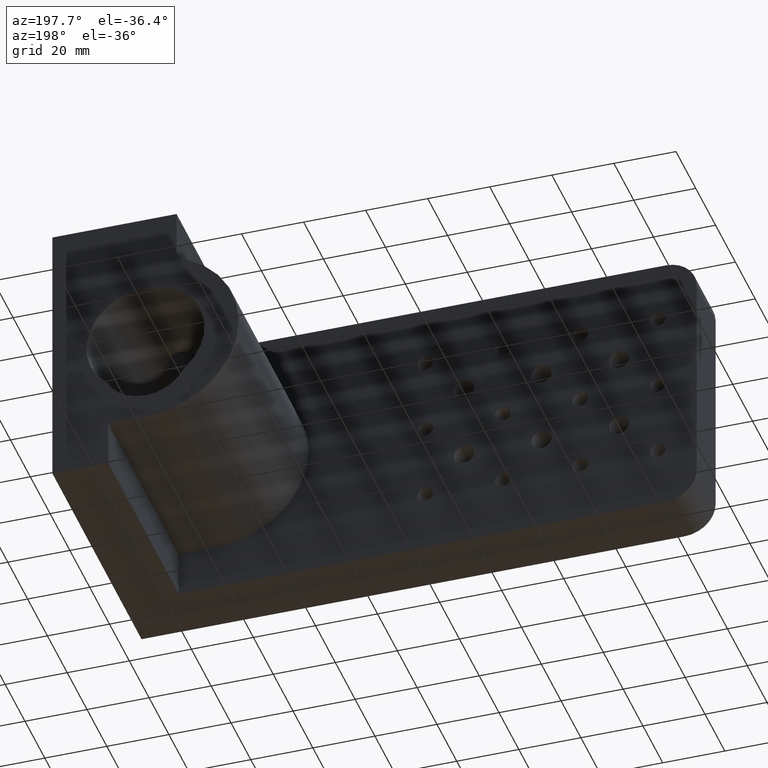
[diagram: clean part render]
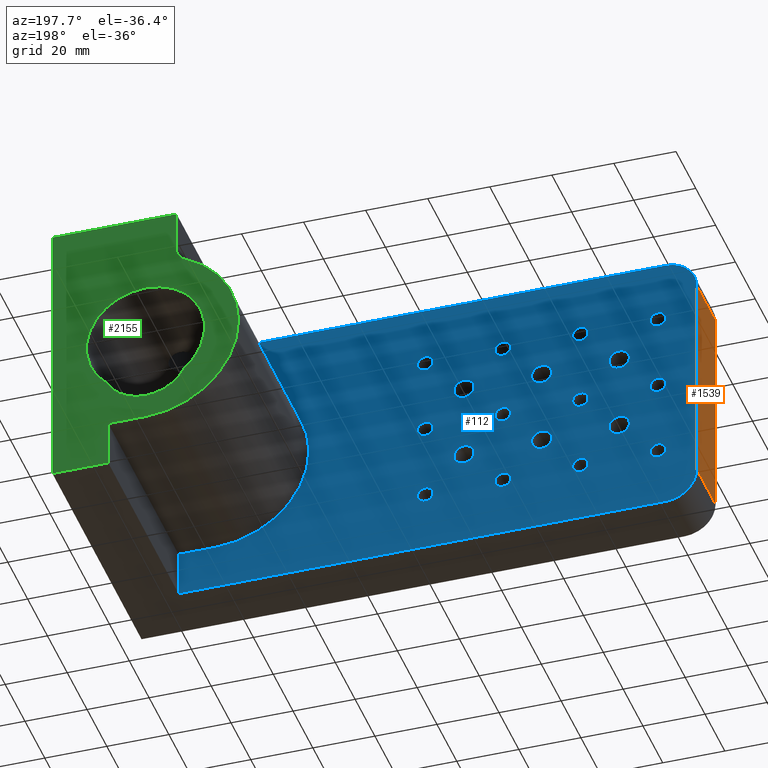
[diagram: same view with three faces highlighted in distinct colors, each labeled with its STEP entity id]
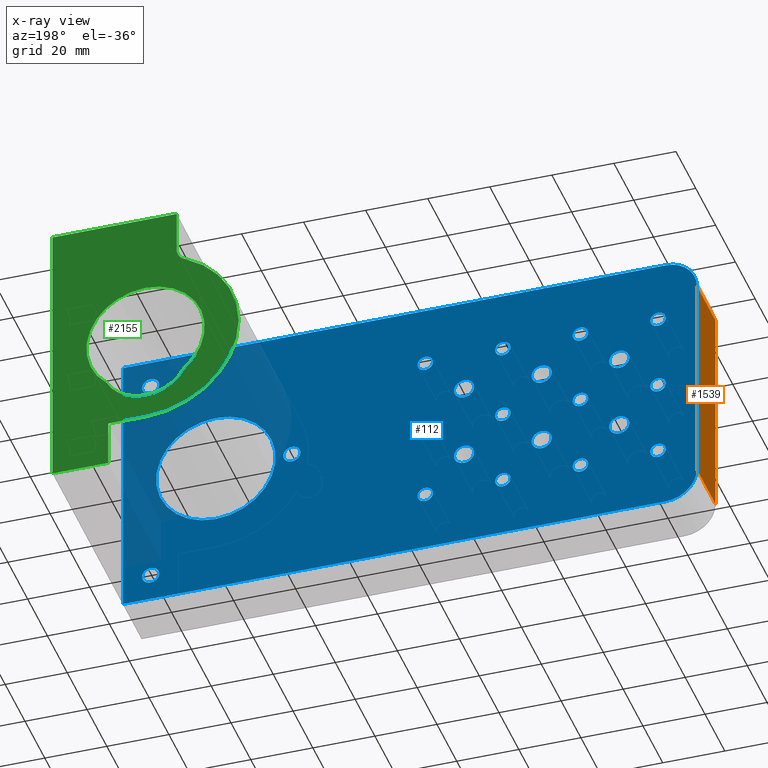
[diagram: x-ray of the same camera — body ghosted, the three highlighted faces saturated]
A machine part, auxiliary view with three faces highlighted in distinct colors.
The next image is the same camera in x-ray (body ghosted, the three faces saturated) — at least one of them is partly hidden behind the body in this view.
Their STEP definitions:

[orange] entity #1539 — the highlighted planar face has unit normal (1, 0, 0).
#70 = CARTESIAN_POINT ( 'NONE',  ( -10.60306127555724100, 104.2146020396520600, 178.8158939252801900 ) ) ;
#183 = DIRECTION ( 'NONE',  ( 0.0000000000000000000, 0.0000000000000000000, 1.000000000000000000 ) ) ;
#231 = VECTOR ( 'NONE', #4204, 1000.000000000000000 ) ;
#435 = FACE_OUTER_BOUND ( 'NONE', #3573, .T. ) ;
#536 = DIRECTION ( 'NONE',  ( 0.0000000000000000000, 0.0000000000000000000, 1.000000000000000000 ) ) ;
#838 = DIRECTION ( 'NONE',  ( 1.000000000000000000, 0.0000000000000000000, 0.0000000000000000000 ) ) ;
#870 = CARTESIAN_POINT ( 'NONE',  ( -10.60306127555724100, 104.2146020396520600, 108.8158939252803500 ) ) ;
#922 = EDGE_CURVE ( 'NONE', #5358, #5105, #4448, .T. ) ;
#999 = VECTOR ( 'NONE', #536, 1000.000000000000000 ) ;
#1022 = VECTOR ( 'NONE', #3764, 1000.000000000000000 ) ;
#1136 = LINE ( 'NONE', #1371, #999 ) ;
#1165 = VERTEX_POINT ( 'NONE', #2636 ) ;
#1172 = EDGE_CURVE ( 'NONE', #1871, #5105, #2895, .T. ) ;
#1371 = CARTESIAN_POINT ( 'NONE',  ( -10.60306127555724100, 104.2146020396520600, 143.8158939252802800 ) ) ;
#1377 = CARTESIAN_POINT ( 'NONE',  ( -10.60306127555724100, 85.21460203965206400, 178.8158939252801900 ) ) ;
#1539 = ADVANCED_FACE ( 'NONE', ( #435 ), #3325, .F. ) ;
#1553 = EDGE_CURVE ( 'NONE', #1165, #1871, #4716, .T. ) ;
#1693 = EDGE_CURVE ( 'NONE', #1165, #5358, #1136, .T. ) ;
#1871 = VERTEX_POINT ( 'NONE', #2706 ) ;
#2345 = ORIENTED_EDGE ( 'NONE', *, *, #1172, .T. ) ;
#2511 = DIRECTION ( 'NONE',  ( 0.0000000000000000000, 0.0000000000000000000, -1.000000000000000000 ) ) ;
#2617 = VECTOR ( 'NONE', #183, 1000.000000000000000 ) ;
#2636 = CARTESIAN_POINT ( 'NONE',  ( -10.60306127555724100, 104.2146020396520600, 108.8158939252803500 ) ) ;
#2706 = CARTESIAN_POINT ( 'NONE',  ( -10.60306127555724100, 85.21460203965206400, 108.8158939252803500 ) ) ;
#2895 = LINE ( 'NONE', #3890, #2617 ) ;
#3325 = PLANE ( 'NONE',  #4365 ) ;
#3376 = ORIENTED_EDGE ( 'NONE', *, *, #922, .F. ) ;
#3480 = ORIENTED_EDGE ( 'NONE', *, *, #1553, .T. ) ;
#3573 = EDGE_LOOP ( 'NONE', ( #2345, #3376, #4011, #3480 ) ) ;
#3638 = CARTESIAN_POINT ( 'NONE',  ( -10.60306127555724100, 104.2146020396520600, 178.8158939252801900 ) ) ;
#3764 = DIRECTION ( 'NONE',  ( -0.0000000000000000000, -1.000000000000000000, -0.0000000000000000000 ) ) ;
#3890 = CARTESIAN_POINT ( 'NONE',  ( -10.60306127555724100, 85.21460203965206400, 143.8158939252802800 ) ) ;
#4011 = ORIENTED_EDGE ( 'NONE', *, *, #1693, .F. ) ;
#4158 = CARTESIAN_POINT ( 'NONE',  ( -10.60306127555724100, 104.2146020396520600, 143.8158939252802800 ) ) ;
#4204 = DIRECTION ( 'NONE',  ( -0.0000000000000000000, -1.000000000000000000, -0.0000000000000000000 ) ) ;
#4365 = AXIS2_PLACEMENT_3D ( 'NONE', #4158, #838, #2511 ) ;
#4448 = LINE ( 'NONE', #70, #231 ) ;
#4716 = LINE ( 'NONE', #870, #1022 ) ;
#5105 = VERTEX_POINT ( 'NONE', #1377 ) ;
#5358 = VERTEX_POINT ( 'NONE', #3638 ) ;

[blue] entity #112 — the highlighted planar face has unit normal (0, 1, -0).
#6 = FACE_BOUND ( 'NONE', #4427, .T. ) ;
#32 = DIRECTION ( 'NONE',  ( -0.0000000000000000000, 1.000000000000000000, -0.0000000000000000000 ) ) ;
#39 = CARTESIAN_POINT ( 'NONE',  ( 51.89693872444276200, 104.2146020396520600, 168.8158939252802500 ) ) ;
#41 = DIRECTION ( 'NONE',  ( -0.0000000000000000000, -1.000000000000000000, -0.0000000000000000000 ) ) ;
#42 = VECTOR ( 'NONE', #3080, 1000.000000000000000 ) ;
#43 = DIRECTION ( 'NONE',  ( 0.0000000000000000000, 0.0000000000000000000, -1.000000000000000000 ) ) ;
#44 = CARTESIAN_POINT ( 'NONE',  ( 64.39693872444274800, 104.2146020396520600, 159.5658939252802500 ) ) ;
#45 = EDGE_CURVE ( 'NONE', #3413, #201, #3114, .T. ) ;
#68 = DIRECTION ( 'NONE',  ( 0.0000000000000000000, 1.000000000000000000, -0.0000000000000000000 ) ) ;
#69 = AXIS2_PLACEMENT_3D ( 'NONE', #4913, #711, #4045 ) ;
#79 = VERTEX_POINT ( 'NONE', #2783 ) ;
#102 = VERTEX_POINT ( 'NONE', #315 ) ;
#104 = CIRCLE ( 'NONE', #1837, 3.249999999999975100 ) ;
#107 = AXIS2_PLACEMENT_3D ( 'NONE', #2035, #2859, #1196 ) ;
#112 = ADVANCED_FACE ( 'NONE', ( #1431, #197, #2786, #4735, #2029, #6, #1297, #3189, #2648, #1696, #4608, #1567, #1114, #3505, #4878, #3049, #3444, #4479, #3382, #2147, #2265, #4090, #2987 ), #3629, .T. ) ;
#115 = AXIS2_PLACEMENT_3D ( 'NONE', #3908, #995, #233 ) ;
#157 = CARTESIAN_POINT ( 'NONE',  ( 26.89693872444276600, 104.2146020396520600, 121.3158939252802500 ) ) ;
#197 = FACE_BOUND ( 'NONE', #3371, .T. ) ;
#200 = AXIS2_PLACEMENT_3D ( 'NONE', #557, #4263, #3456 ) ;
#201 = VERTEX_POINT ( 'NONE', #4484 ) ;
#232 = DIRECTION ( 'NONE',  ( -0.0000000000000000000, 1.000000000000000000, -0.0000000000000000000 ) ) ;
#233 = DIRECTION ( 'NONE',  ( 0.0000000000000000000, 0.0000000000000000000, 1.000000000000000000 ) ) ;
#245 = CARTESIAN_POINT ( 'NONE',  ( 64.39693872444274800, 104.2146020396520600, 153.0658939252803100 ) ) ;
#249 = VERTEX_POINT ( 'NONE', #3246 ) ;
#259 = DIRECTION ( 'NONE',  ( 0.0000000000000000000, 0.0000000000000000000, -1.000000000000000000 ) ) ;
#287 = CARTESIAN_POINT ( 'NONE',  ( 64.39693872444276200, 104.2146020396520600, 128.0658939252802800 ) ) ;
#299 = CARTESIAN_POINT ( 'NONE',  ( 76.89693872444274800, 104.2146020396520600, 146.3158939252802800 ) ) ;
#315 = CARTESIAN_POINT ( 'NONE',  ( 1.896938724442798200, 104.2146020396520600, 121.3158939252802500 ) ) ;
#337 = EDGE_CURVE ( 'NONE', #4061, #3203, #4710, .T. ) ;
#338 = CARTESIAN_POINT ( 'NONE',  ( 144.3969387244427500, 104.2146020396520600, 143.8158939252802800 ) ) ;
#358 = CARTESIAN_POINT ( 'NONE',  ( 1.896938724442798400, 104.2146020396520600, 116.3158939252803100 ) ) ;
#371 = CARTESIAN_POINT ( 'NONE',  ( 165.3969387244427500, 104.2146020396520600, 110.5658939252802600 ) ) ;
#374 = VERTEX_POINT ( 'NONE', #5015 ) ;
#379 = ORIENTED_EDGE ( 'NONE', *, *, #3810, .T. ) ;
#389 = AXIS2_PLACEMENT_3D ( 'NONE', #3681, #5369, #2878 ) ;
#405 = ORIENTED_EDGE ( 'NONE', *, *, #5255, .F. ) ;
#433 = EDGE_CURVE ( 'NONE', #3111, #3988, #104, .T. ) ;
#439 = ORIENTED_EDGE ( 'NONE', *, *, #790, .F. ) ;
#445 = AXIS2_PLACEMENT_3D ( 'NONE', #4458, #2850, #2805 ) ;
#450 = DIRECTION ( 'NONE',  ( 0.0000000000000000000, 0.0000000000000000000, -1.000000000000000000 ) ) ;
#460 = ORIENTED_EDGE ( 'NONE', *, *, #337, .F. ) ;
#472 = DIRECTION ( 'NONE',  ( -0.0000000000000000000, 1.000000000000000000, -0.0000000000000000000 ) ) ;
#516 = AXIS2_PLACEMENT_3D ( 'NONE', #4354, #1444, #4738 ) ;
#522 = DIRECTION ( 'NONE',  ( 0.0000000000000000000, 0.0000000000000000000, 1.000000000000000000 ) ) ;
#533 = EDGE_CURVE ( 'NONE', #5363, #4637, #4380, .T. ) ;
#535 = EDGE_LOOP ( 'NONE', ( #1809, #2600 ) ) ;
#536 = DIRECTION ( 'NONE',  ( 0.0000000000000000000, 0.0000000000000000000, 1.000000000000000000 ) ) ;
#547 = CARTESIAN_POINT ( 'NONE',  ( 174.3969387244427500, 104.2146020396520600, 98.81589392528026400 ) ) ;
#557 = CARTESIAN_POINT ( 'NONE',  ( 64.39693872444276200, 104.2146020396520600, 131.3158939252802500 ) ) ;
#575 = DIRECTION ( 'NONE',  ( 0.0000000000000000000, 0.0000000000000000000, -1.000000000000000000 ) ) ;
#580 = DIRECTION ( 'NONE',  ( 0.0000000000000000000, 0.0000000000000000000, -1.000000000000000000 ) ) ;
#588 = CARTESIAN_POINT ( 'NONE',  ( 51.89693872444276200, 104.2146020396520600, 116.3158939252802900 ) ) ;
#598 = CARTESIAN_POINT ( 'NONE',  ( 1.896938724442798200, 104.2146020396520600, 118.8158939252802800 ) ) ;
#605 = ORIENTED_EDGE ( 'NONE', *, *, #2339, .F. ) ;
#615 = EDGE_LOOP ( 'NONE', ( #4682, #460 ) ) ;
#639 = CARTESIAN_POINT ( 'NONE',  ( 26.89693872444276600, 104.2146020396520600, 118.8158939252802800 ) ) ;
#650 = EDGE_CURVE ( 'NONE', #1805, #5051, #5373, .T. ) ;
#693 = VERTEX_POINT ( 'NONE', #4805 ) ;
#708 = ORIENTED_EDGE ( 'NONE', *, *, #2380, .F. ) ;
#711 = DIRECTION ( 'NONE',  ( -0.0000000000000000000, 1.000000000000000000, -0.0000000000000000000 ) ) ;
#739 = CARTESIAN_POINT ( 'NONE',  ( 1.896938724442742900, 104.2146020396520600, 141.3158939252803100 ) ) ;
#747 = CIRCLE ( 'NONE', #115, 2.500000000000002200 ) ;
#758 = EDGE_LOOP ( 'NONE', ( #4612, #1834, #5298, #4804, #1126, #379 ) ) ;
#760 = CIRCLE ( 'NONE', #389, 2.500000000000002200 ) ;
#762 = ORIENTED_EDGE ( 'NONE', *, *, #1781, .T. ) ;
#771 = DIRECTION ( 'NONE',  ( -0.0000000000000000000, -1.000000000000000000, -0.0000000000000000000 ) ) ;
#784 = EDGE_CURVE ( 'NONE', #2556, #4592, #4517, .T. ) ;
#790 = EDGE_CURVE ( 'NONE', #1395, #3244, #887, .T. ) ;
#801 = CIRCLE ( 'NONE', #5111, 2.500000000000002200 ) ;
#873 = AXIS2_PLACEMENT_3D ( 'NONE', #3830, #3037, #4243 ) ;
#887 = CIRCLE ( 'NONE', #5241, 2.499999999999974200 ) ;
#901 = CARTESIAN_POINT ( 'NONE',  ( 51.89693872444276200, 104.2146020396520600, 166.3158939252802800 ) ) ;
#911 = AXIS2_PLACEMENT_3D ( 'NONE', #3482, #5104, #575 ) ;
#919 = CARTESIAN_POINT ( 'NONE',  ( 64.39693872444274800, 104.2146020396520600, 156.3158939252802800 ) ) ;
#931 = EDGE_CURVE ( 'NONE', #2520, #3657, #4983, .T. ) ;
#937 = CIRCLE ( 'NONE', #2059, 2.499999999999974200 ) ;
#939 = CIRCLE ( 'NONE', #3558, 2.499999999999988500 ) ;
#942 = ORIENTED_EDGE ( 'NONE', *, *, #433, .T. ) ;
#959 = CARTESIAN_POINT ( 'NONE',  ( 39.39693872444274800, 104.2146020396520600, 153.0658939252803100 ) ) ;
#995 = DIRECTION ( 'NONE',  ( -0.0000000000000000000, 1.000000000000000000, -0.0000000000000000000 ) ) ;
#999 = VECTOR ( 'NONE', #536, 1000.000000000000000 ) ;
#1019 = CARTESIAN_POINT ( 'NONE',  ( 119.8969387244427500, 104.2146020396520600, 141.0658939252802800 ) ) ;
#1024 = DIRECTION ( 'NONE',  ( 0.0000000000000000000, 0.0000000000000000000, -1.000000000000000000 ) ) ;
#1025 = EDGE_CURVE ( 'NONE', #1421, #1255, #2559, .T. ) ;
#1029 = CARTESIAN_POINT ( 'NONE',  ( 14.39693872444275300, 104.2146020396520600, 159.5658939252802500 ) ) ;
#1031 = EDGE_LOOP ( 'NONE', ( #2353, #3181 ) ) ;
#1034 = CARTESIAN_POINT ( 'NONE',  ( 165.3969387244427500, 104.2146020396520600, 105.0658939252802900 ) ) ;
#1040 = CARTESIAN_POINT ( 'NONE',  ( 39.39693872444274800, 104.2146020396520600, 156.3158939252802800 ) ) ;
#1047 = CIRCLE ( 'NONE', #3748, 19.24999999999998900 ) ;
#1054 = CARTESIAN_POINT ( 'NONE',  ( 1.896938724442798200, 104.2146020396520600, 168.8158939252802500 ) ) ;
#1089 = DIRECTION ( 'NONE',  ( -0.0000000000000000000, 1.000000000000000000, -0.0000000000000000000 ) ) ;
#1102 = EDGE_CURVE ( 'NONE', #102, #4812, #5229, .T. ) ;
#1114 = FACE_BOUND ( 'NONE', #2658, .T. ) ;
#1126 = ORIENTED_EDGE ( 'NONE', *, *, #3939, .T. ) ;
#1136 = LINE ( 'NONE', #1371, #999 ) ;
#1142 = ORIENTED_EDGE ( 'NONE', *, *, #3932, .T. ) ;
#1152 = CARTESIAN_POINT ( 'NONE',  ( -0.6030612755571762600, 104.2146020396520600, 188.8158939252802500 ) ) ;
#1157 = AXIS2_PLACEMENT_3D ( 'NONE', #5108, #2605, #3918 ) ;
#1159 = VERTEX_POINT ( 'NONE', #1401 ) ;
#1165 = VERTEX_POINT ( 'NONE', #2636 ) ;
#1170 = DIRECTION ( 'NONE',  ( 0.0000000000000000000, 0.0000000000000000000, 1.000000000000000000 ) ) ;
#1182 = DIRECTION ( 'NONE',  ( 0.0000000000000000000, 0.0000000000000000000, -1.000000000000000000 ) ) ;
#1196 = DIRECTION ( 'NONE',  ( 0.0000000000000000000, 0.0000000000000000000, 1.000000000000000000 ) ) ;
#1206 = ORIENTED_EDGE ( 'NONE', *, *, #5264, .F. ) ;
#1214 = EDGE_CURVE ( 'NONE', #2157, #1768, #3153, .T. ) ;
#1255 = VERTEX_POINT ( 'NONE', #1034 ) ;
#1259 = AXIS2_PLACEMENT_3D ( 'NONE', #4643, #5056, #43 ) ;
#1288 = CARTESIAN_POINT ( 'NONE',  ( 165.3969387244427500, 104.2146020396520600, 107.8158939252802800 ) ) ;
#1297 = FACE_BOUND ( 'NONE', #4007, .T. ) ;
#1306 = CIRCLE ( 'NONE', #2187, 3.249999999999975100 ) ;
#1313 = CIRCLE ( 'NONE', #2286, 19.24999999999998900 ) ;
#1323 = EDGE_LOOP ( 'NONE', ( #1799, #605 ) ) ;
#1334 = DIRECTION ( 'NONE',  ( -0.0000000000000000000, -1.000000000000000000, -0.0000000000000000000 ) ) ;
#1348 = EDGE_LOOP ( 'NONE', ( #1372, #1440 ) ) ;
#1357 = VERTEX_POINT ( 'NONE', #5301 ) ;
#1360 = CARTESIAN_POINT ( 'NONE',  ( 64.39693872444274800, 104.2146020396520600, 156.3158939252802800 ) ) ;
#1362 = VERTEX_POINT ( 'NONE', #4015 ) ;
#1371 = CARTESIAN_POINT ( 'NONE',  ( -10.60306127555724100, 104.2146020396520600, 143.8158939252802800 ) ) ;
#1372 = ORIENTED_EDGE ( 'NONE', *, *, #4572, .T. ) ;
#1383 = CIRCLE ( 'NONE', #3948, 3.249999999999975100 ) ;
#1395 = VERTEX_POINT ( 'NONE', #2012 ) ;
#1401 = CARTESIAN_POINT ( 'NONE',  ( 76.89693872444274800, 104.2146020396520600, 141.3158939252802800 ) ) ;
#1421 = VERTEX_POINT ( 'NONE', #371 ) ;
#1430 = CIRCLE ( 'NONE', #3987, 2.749999999999988500 ) ;
#1431 = FACE_BOUND ( 'NONE', #3250, .T. ) ;
#1440 = ORIENTED_EDGE ( 'NONE', *, *, #650, .T. ) ;
#1444 = DIRECTION ( 'NONE',  ( -0.0000000000000000000, 1.000000000000000000, -0.0000000000000000000 ) ) ;
#1447 = VERTEX_POINT ( 'NONE', #1152 ) ;
#1453 = ORIENTED_EDGE ( 'NONE', *, *, #1214, .T. ) ;
#1497 = AXIS2_PLACEMENT_3D ( 'NONE', #639, #1914, #4800 ) ;
#1501 = EDGE_CURVE ( 'NONE', #4812, #102, #4992, .T. ) ;
#1557 = VERTEX_POINT ( 'NONE', #3341 ) ;
#1567 = FACE_BOUND ( 'NONE', #2545, .T. ) ;
#1576 = DIRECTION ( 'NONE',  ( -0.0000000000000000000, -1.000000000000000000, -0.0000000000000000000 ) ) ;
#1586 = EDGE_LOOP ( 'NONE', ( #708, #3833 ) ) ;
#1591 = ORIENTED_EDGE ( 'NONE', *, *, #4343, .T. ) ;
#1693 = EDGE_CURVE ( 'NONE', #1165, #5358, #1136, .T. ) ;
#1696 = FACE_BOUND ( 'NONE', #615, .T. ) ;
#1741 = VERTEX_POINT ( 'NONE', #4280 ) ;
#1765 = DIRECTION ( 'NONE',  ( 0.0000000000000000000, 0.0000000000000000000, -1.000000000000000000 ) ) ;
#1768 = VERTEX_POINT ( 'NONE', #1029 ) ;
#1773 = CARTESIAN_POINT ( 'NONE',  ( 26.89693872444279400, 104.2146020396520600, 166.3158939252802500 ) ) ;
#1781 = EDGE_CURVE ( 'NONE', #1357, #3520, #4758, .T. ) ;
#1784 = CIRCLE ( 'NONE', #911, 2.750000000000002700 ) ;
#1790 = CARTESIAN_POINT ( 'NONE',  ( 76.89693872444274800, 104.2146020396520600, 166.3158939252802800 ) ) ;
#1796 = CARTESIAN_POINT ( 'NONE',  ( 14.39693872444275300, 104.2146020396520600, 134.5658939252802200 ) ) ;
#1799 = ORIENTED_EDGE ( 'NONE', *, *, #4653, .F. ) ;
#1805 = VERTEX_POINT ( 'NONE', #3188 ) ;
#1809 = ORIENTED_EDGE ( 'NONE', *, *, #45, .T. ) ;
#1819 = EDGE_LOOP ( 'NONE', ( #3237, #4614 ) ) ;
#1825 = EDGE_CURVE ( 'NONE', #249, #5269, #937, .T. ) ;
#1834 = ORIENTED_EDGE ( 'NONE', *, *, #533, .F. ) ;
#1837 = AXIS2_PLACEMENT_3D ( 'NONE', #1360, #3860, #1765 ) ;
#1850 = CARTESIAN_POINT ( 'NONE',  ( 26.89693872444279400, 104.2146020396520600, 143.8158939252802800 ) ) ;
#1876 = CARTESIAN_POINT ( 'NONE',  ( 174.3969387244427500, 104.2146020396520600, 188.8158939252802500 ) ) ;
#1880 = DIRECTION ( 'NONE',  ( -0.0000000000000000000, -1.000000000000000000, -0.0000000000000000000 ) ) ;
#1907 = ORIENTED_EDGE ( 'NONE', *, *, #3251, .T. ) ;
#1913 = VECTOR ( 'NONE', #3994, 1000.000000000000000 ) ;
#1914 = DIRECTION ( 'NONE',  ( -0.0000000000000000000, 1.000000000000000000, -0.0000000000000000000 ) ) ;
#1937 = DIRECTION ( 'NONE',  ( 0.0000000000000000000, 0.0000000000000000000, 1.000000000000000000 ) ) ;
#1942 = DIRECTION ( 'NONE',  ( 0.0000000000000000000, 0.0000000000000000000, -1.000000000000000000 ) ) ;
#1951 = AXIS2_PLACEMENT_3D ( 'NONE', #919, #1334, #2558 ) ;
#1989 = CARTESIAN_POINT ( 'NONE',  ( 165.3969387244427500, 104.2146020396520600, 107.8158939252802800 ) ) ;
#2012 = CARTESIAN_POINT ( 'NONE',  ( 76.89693872444274800, 104.2146020396520600, 171.3158939252802500 ) ) ;
#2029 = FACE_BOUND ( 'NONE', #3715, .T. ) ;
#2034 = AXIS2_PLACEMENT_3D ( 'NONE', #39, #2944, #2567 ) ;
#2035 = CARTESIAN_POINT ( 'NONE',  ( 51.89693872444276200, 104.2146020396520600, 168.8158939252802500 ) ) ;
#2047 = ORIENTED_EDGE ( 'NONE', *, *, #3377, .T. ) ;
#2053 = ORIENTED_EDGE ( 'NONE', *, *, #5194, .F. ) ;
#2056 = EDGE_LOOP ( 'NONE', ( #4666, #5163 ) ) ;
#2059 = AXIS2_PLACEMENT_3D ( 'NONE', #2311, #232, #4432 ) ;
#2131 = CARTESIAN_POINT ( 'NONE',  ( -0.6030612755572317700, 104.2146020396520600, 108.8158939252802600 ) ) ;
#2140 = EDGE_CURVE ( 'NONE', #3988, #3111, #2541, .T. ) ;
#2145 = DIRECTION ( 'NONE',  ( 0.0000000000000000000, 0.0000000000000000000, 1.000000000000000000 ) ) ;
#2147 = FACE_BOUND ( 'NONE', #1348, .T. ) ;
#2154 = CARTESIAN_POINT ( 'NONE',  ( 26.89693872444279400, 104.2146020396520600, 168.8158939252802500 ) ) ;
#2157 = VERTEX_POINT ( 'NONE', #3867 ) ;
#2161 = DIRECTION ( 'NONE',  ( 0.0000000000000000000, 0.0000000000000000000, 1.000000000000000000 ) ) ;
#2187 = AXIS2_PLACEMENT_3D ( 'NONE', #3127, #1576, #1942 ) ;
#2239 = CARTESIAN_POINT ( 'NONE',  ( 51.89693872444276200, 104.2146020396520600, 141.3158939252802800 ) ) ;
#2263 = CARTESIAN_POINT ( 'NONE',  ( 39.39693872444274800, 104.2146020396520600, 131.3158939252802500 ) ) ;
#2265 = FACE_BOUND ( 'NONE', #4176, .T. ) ;
#2273 = DIRECTION ( 'NONE',  ( -0.0000000000000000000, 1.000000000000000000, -0.0000000000000000000 ) ) ;
#2278 = DIRECTION ( 'NONE',  ( -0.0000000000000000000, -1.000000000000000000, -0.0000000000000000000 ) ) ;
#2280 = ORIENTED_EDGE ( 'NONE', *, *, #1025, .T. ) ;
#2285 = DIRECTION ( 'NONE',  ( 0.0000000000000000000, 0.0000000000000000000, -1.000000000000000000 ) ) ;
#2286 = AXIS2_PLACEMENT_3D ( 'NONE', #4518, #5356, #2865 ) ;
#2291 = CARTESIAN_POINT ( 'NONE',  ( 39.39693872444274800, 104.2146020396520600, 128.0658939252802800 ) ) ;
#2305 = DIRECTION ( 'NONE',  ( -0.0000000000000000000, 1.000000000000000000, -0.0000000000000000000 ) ) ;
#2310 = CARTESIAN_POINT ( 'NONE',  ( 144.3969387244427500, 104.2146020396520600, 124.5658939252802600 ) ) ;
#2311 = CARTESIAN_POINT ( 'NONE',  ( 26.89693872444276600, 104.2146020396520600, 118.8158939252802800 ) ) ;
#2316 = DIRECTION ( 'NONE',  ( -0.0000000000000000000, 1.000000000000000000, -0.0000000000000000000 ) ) ;
#2328 = CARTESIAN_POINT ( 'NONE',  ( 26.89693872444279400, 104.2146020396520600, 146.3158939252802800 ) ) ;
#2339 = EDGE_CURVE ( 'NONE', #2609, #374, #4104, .T. ) ;
#2353 = ORIENTED_EDGE ( 'NONE', *, *, #3869, .F. ) ;
#2357 = DIRECTION ( 'NONE',  ( 0.0000000000000000000, 0.0000000000000000000, 1.000000000000000000 ) ) ;
#2359 = DIRECTION ( 'NONE',  ( 0.0000000000000000000, 0.0000000000000000000, 1.000000000000000000 ) ) ;
#2362 = EDGE_LOOP ( 'NONE', ( #3279, #1206 ) ) ;
#2369 = ORIENTED_EDGE ( 'NONE', *, *, #2820, .F. ) ;
#2373 = DIRECTION ( 'NONE',  ( 0.0000000000000000000, 0.0000000000000000000, 1.000000000000000000 ) ) ;
#2380 = EDGE_CURVE ( 'NONE', #2615, #2676, #1313, .T. ) ;
#2394 = DIRECTION ( 'NONE',  ( -0.0000000000000000000, 1.000000000000000000, -0.0000000000000000000 ) ) ;
#2395 = DIRECTION ( 'NONE',  ( 0.0000000000000000000, 0.0000000000000000000, 1.000000000000000000 ) ) ;
#2415 = CARTESIAN_POINT ( 'NONE',  ( 26.89693872444279400, 104.2146020396520600, 171.3158939252802800 ) ) ;
#2447 = EDGE_CURVE ( 'NONE', #1159, #4819, #4677, .T. ) ;
#2520 = VERTEX_POINT ( 'NONE', #1773 ) ;
#2532 = CARTESIAN_POINT ( 'NONE',  ( 1.896938724442798200, 104.2146020396520600, 168.8158939252802500 ) ) ;
#2541 = CIRCLE ( 'NONE', #1951, 3.249999999999975100 ) ;
#2545 = EDGE_LOOP ( 'NONE', ( #4142, #3671 ) ) ;
#2550 = VERTEX_POINT ( 'NONE', #1796 ) ;
#2554 = AXIS2_PLACEMENT_3D ( 'NONE', #4772, #5191, #2695 ) ;
#2556 = VERTEX_POINT ( 'NONE', #959 ) ;
#2558 = DIRECTION ( 'NONE',  ( 0.0000000000000000000, 0.0000000000000000000, -1.000000000000000000 ) ) ;
#2559 = CIRCLE ( 'NONE', #3233, 2.749999999999988500 ) ;
#2567 = DIRECTION ( 'NONE',  ( 0.0000000000000000000, 0.0000000000000000000, 1.000000000000000000 ) ) ;
#2575 = EDGE_CURVE ( 'NONE', #3657, #2520, #801, .T. ) ;
#2600 = ORIENTED_EDGE ( 'NONE', *, *, #5027, .T. ) ;
#2605 = DIRECTION ( 'NONE',  ( -0.0000000000000000000, -1.000000000000000000, -0.0000000000000000000 ) ) ;
#2609 = VERTEX_POINT ( 'NONE', #2239 ) ;
#2615 = VERTEX_POINT ( 'NONE', #2310 ) ;
#2626 = EDGE_LOOP ( 'NONE', ( #2047, #762 ) ) ;
#2636 = CARTESIAN_POINT ( 'NONE',  ( -10.60306127555724100, 104.2146020396520600, 108.8158939252803500 ) ) ;
#2639 = CARTESIAN_POINT ( 'NONE',  ( 119.8969387244427500, 104.2146020396520600, 143.8158939252802800 ) ) ;
#2646 = ORIENTED_EDGE ( 'NONE', *, *, #3564, .F. ) ;
#2648 = FACE_BOUND ( 'NONE', #4729, .T. ) ;
#2652 = CIRCLE ( 'NONE', #873, 2.499999999999988500 ) ;
#2658 = EDGE_LOOP ( 'NONE', ( #2369, #2646 ) ) ;
#2660 = ORIENTED_EDGE ( 'NONE', *, *, #3258, .T. ) ;
#2668 = CARTESIAN_POINT ( 'NONE',  ( 76.89693872444274800, 104.2146020396520600, 118.8158939252802800 ) ) ;
#2671 = VERTEX_POINT ( 'NONE', #588 ) ;
#2676 = VERTEX_POINT ( 'NONE', #2704 ) ;
#2695 = DIRECTION ( 'NONE',  ( 0.0000000000000000000, 0.0000000000000000000, -1.000000000000000000 ) ) ;
#2704 = CARTESIAN_POINT ( 'NONE',  ( 144.3969387244427500, 104.2146020396520600, 163.0658939252802500 ) ) ;
#2739 = CARTESIAN_POINT ( 'NONE',  ( 1.896938724442742700, 104.2146020396520600, 143.8158939252802800 ) ) ;
#2765 = ORIENTED_EDGE ( 'NONE', *, *, #2447, .F. ) ;
#2781 = CARTESIAN_POINT ( 'NONE',  ( -0.6030612755572317700, 104.2146020396520600, 178.8158939252802800 ) ) ;
#2783 = CARTESIAN_POINT ( 'NONE',  ( 1.896938724442742700, 104.2146020396520600, 146.3158939252802500 ) ) ;
#2785 = CIRCLE ( 'NONE', #3885, 2.499999999999974200 ) ;
#2786 = FACE_BOUND ( 'NONE', #4133, .T. ) ;
#2805 = DIRECTION ( 'NONE',  ( 0.0000000000000000000, 0.0000000000000000000, 1.000000000000000000 ) ) ;
#2820 = EDGE_CURVE ( 'NONE', #79, #4163, #4745, .T. ) ;
#2823 = CIRCLE ( 'NONE', #1259, 3.249999999999975100 ) ;
#2849 = VERTEX_POINT ( 'NONE', #4010 ) ;
#2850 = DIRECTION ( 'NONE',  ( -0.0000000000000000000, 1.000000000000000000, -0.0000000000000000000 ) ) ;
#2859 = DIRECTION ( 'NONE',  ( -0.0000000000000000000, 1.000000000000000000, -0.0000000000000000000 ) ) ;
#2860 = LINE ( 'NONE', #1876, #4607 ) ;
#2865 = DIRECTION ( 'NONE',  ( 0.0000000000000000000, 0.0000000000000000000, 1.000000000000000000 ) ) ;
#2878 = DIRECTION ( 'NONE',  ( 0.0000000000000000000, 0.0000000000000000000, 1.000000000000000000 ) ) ;
#2882 = ORIENTED_EDGE ( 'NONE', *, *, #2140, .T. ) ;
#2897 = EDGE_CURVE ( 'NONE', #2550, #1557, #5076, .T. ) ;
#2921 = AXIS2_PLACEMENT_3D ( 'NONE', #4337, #3494, #4301 ) ;
#2931 = EDGE_CURVE ( 'NONE', #4592, #2556, #1306, .T. ) ;
#2937 = CIRCLE ( 'NONE', #1157, 3.249999999999975100 ) ;
#2938 = DIRECTION ( 'NONE',  ( 0.0000000000000000000, 0.0000000000000000000, 1.000000000000000000 ) ) ;
#2943 = ORIENTED_EDGE ( 'NONE', *, *, #2575, .F. ) ;
#2944 = DIRECTION ( 'NONE',  ( -0.0000000000000000000, 1.000000000000000000, -0.0000000000000000000 ) ) ;
#2987 = FACE_BOUND ( 'NONE', #1586, .T. ) ;
#2989 = AXIS2_PLACEMENT_3D ( 'NONE', #2781, #3670, #2373 ) ;
#2990 = CIRCLE ( 'NONE', #516, 2.499999999999988500 ) ;
#3023 = VERTEX_POINT ( 'NONE', #901 ) ;
#3037 = DIRECTION ( 'NONE',  ( -0.0000000000000000000, 1.000000000000000000, -0.0000000000000000000 ) ) ;
#3049 = FACE_BOUND ( 'NONE', #1819, .T. ) ;
#3080 = DIRECTION ( 'NONE',  ( 1.000000000000000000, -0.0000000000000000000, 0.0000000000000000000 ) ) ;
#3091 = DIRECTION ( 'NONE',  ( -0.0000000000000000000, 1.000000000000000000, -0.0000000000000000000 ) ) ;
#3097 = DIRECTION ( 'NONE',  ( 0.0000000000000000000, 0.0000000000000000000, 1.000000000000000000 ) ) ;
#3111 = VERTEX_POINT ( 'NONE', #44 ) ;
#3114 = CIRCLE ( 'NONE', #4254, 2.750000000000002700 ) ;
#3127 = CARTESIAN_POINT ( 'NONE',  ( 39.39693872444274800, 104.2146020396520600, 156.3158939252802800 ) ) ;
#3146 = EDGE_CURVE ( 'NONE', #693, #1362, #2652, .T. ) ;
#3153 = CIRCLE ( 'NONE', #5273, 3.249999999999975100 ) ;
#3181 = ORIENTED_EDGE ( 'NONE', *, *, #1825, .F. ) ;
#3182 = CARTESIAN_POINT ( 'NONE',  ( 51.89693872444276200, 104.2146020396520600, 143.8158939252802800 ) ) ;
#3188 = CARTESIAN_POINT ( 'NONE',  ( 119.8969387244427500, 104.2146020396520600, 146.5658939252802800 ) ) ;
#3189 = FACE_BOUND ( 'NONE', #4820, .T. ) ;
#3190 = CARTESIAN_POINT ( 'NONE',  ( -0.6030612755571762600, 104.2146020396520600, 98.81589392528026400 ) ) ;
#3197 = VERTEX_POINT ( 'NONE', #3865 ) ;
#3200 = CARTESIAN_POINT ( 'NONE',  ( 76.89693872444274800, 104.2146020396520600, 168.8158939252802500 ) ) ;
#3203 = VERTEX_POINT ( 'NONE', #5092 ) ;
#3212 = CIRCLE ( 'NONE', #3693, 10.00000000000000900 ) ;
#3233 = AXIS2_PLACEMENT_3D ( 'NONE', #1288, #41, #450 ) ;
#3237 = ORIENTED_EDGE ( 'NONE', *, *, #1102, .F. ) ;
#3244 = VERTEX_POINT ( 'NONE', #1790 ) ;
#3246 = CARTESIAN_POINT ( 'NONE',  ( 26.89693872444276600, 104.2146020396520600, 116.3158939252803100 ) ) ;
#3250 = EDGE_LOOP ( 'NONE', ( #4957, #3934 ) ) ;
#3251 = EDGE_CURVE ( 'NONE', #1557, #2550, #2937, .T. ) ;
#3258 = EDGE_CURVE ( 'NONE', #1741, #3976, #1383, .T. ) ;
#3265 = AXIS2_PLACEMENT_3D ( 'NONE', #2532, #3812, #2145 ) ;
#3279 = ORIENTED_EDGE ( 'NONE', *, *, #3146, .F. ) ;
#3294 = AXIS2_PLACEMENT_3D ( 'NONE', #3495, #2273, #4307 ) ;
#3309 = AXIS2_PLACEMENT_3D ( 'NONE', #1040, #3937, #2285 ) ;
#3320 = EDGE_CURVE ( 'NONE', #3697, #5343, #3442, .T. ) ;
#3341 = CARTESIAN_POINT ( 'NONE',  ( 14.39693872444275300, 104.2146020396520600, 128.0658939252802800 ) ) ;
#3349 = EDGE_CURVE ( 'NONE', #2671, #2849, #2990, .T. ) ;
#3371 = EDGE_LOOP ( 'NONE', ( #1453, #4005 ) ) ;
#3377 = EDGE_CURVE ( 'NONE', #3520, #1357, #3832, .T. ) ;
#3382 = FACE_BOUND ( 'NONE', #535, .T. ) ;
#3413 = VERTEX_POINT ( 'NONE', #5313 ) ;
#3442 = CIRCLE ( 'NONE', #4229, 2.500000000000002200 ) ;
#3444 = FACE_BOUND ( 'NONE', #4632, .T. ) ;
#3456 = DIRECTION ( 'NONE',  ( 0.0000000000000000000, 0.0000000000000000000, -1.000000000000000000 ) ) ;
#3482 = CARTESIAN_POINT ( 'NONE',  ( 165.3969387244427500, 104.2146020396520600, 179.8158939252802500 ) ) ;
#3489 = CARTESIAN_POINT ( 'NONE',  ( 39.39693872444274800, 104.2146020396520600, 159.5658939252802500 ) ) ;
#3494 = DIRECTION ( 'NONE',  ( -0.0000000000000000000, -1.000000000000000000, -0.0000000000000000000 ) ) ;
#3495 = CARTESIAN_POINT ( 'NONE',  ( 76.89693872444274800, 104.2146020396520600, 168.8158939252802500 ) ) ;
#3505 = FACE_BOUND ( 'NONE', #2056, .T. ) ;
#3520 = VERTEX_POINT ( 'NONE', #287 ) ;
#3525 = EDGE_CURVE ( 'NONE', #1768, #2157, #4740, .T. ) ;
#3557 = DIRECTION ( 'NONE',  ( 1.000000000000000000, -0.0000000000000000000, 0.0000000000000000000 ) ) ;
#3558 = AXIS2_PLACEMENT_3D ( 'NONE', #2668, #4378, #3097 ) ;
#3564 = EDGE_CURVE ( 'NONE', #4163, #79, #3641, .T. ) ;
#3577 = DIRECTION ( 'NONE',  ( 0.0000000000000000000, 0.0000000000000000000, -1.000000000000000000 ) ) ;
#3584 = AXIS2_PLACEMENT_3D ( 'NONE', #2639, #5107, #580 ) ;
#3598 = DIRECTION ( 'NONE',  ( -0.0000000000000000000, -1.000000000000000000, -0.0000000000000000000 ) ) ;
#3624 = EDGE_CURVE ( 'NONE', #2676, #2615, #1047, .T. ) ;
#3629 = PLANE ( 'NONE',  #4640 ) ;
#3638 = CARTESIAN_POINT ( 'NONE',  ( -10.60306127555724100, 104.2146020396520600, 178.8158939252801900 ) ) ;
#3641 = CIRCLE ( 'NONE', #4679, 2.499999999999974200 ) ;
#3657 = VERTEX_POINT ( 'NONE', #2415 ) ;
#3670 = DIRECTION ( 'NONE',  ( 0.0000000000000000000, 1.000000000000000000, -0.0000000000000000000 ) ) ;
#3671 = ORIENTED_EDGE ( 'NONE', *, *, #4319, .F. ) ;
#3672 = CARTESIAN_POINT ( 'NONE',  ( 174.3969387244427500, 104.2146020396520600, 143.8158939252802800 ) ) ;
#3681 = CARTESIAN_POINT ( 'NONE',  ( 26.89693872444279400, 104.2146020396520600, 143.8158939252802800 ) ) ;
#3693 = AXIS2_PLACEMENT_3D ( 'NONE', #2131, #68, #522 ) ;
#3697 = VERTEX_POINT ( 'NONE', #2328 ) ;
#3715 = EDGE_LOOP ( 'NONE', ( #1907, #3941 ) ) ;
#3745 = DIRECTION ( 'NONE',  ( -0.0000000000000000000, 1.000000000000000000, -0.0000000000000000000 ) ) ;
#3748 = AXIS2_PLACEMENT_3D ( 'NONE', #338, #4894, #2395 ) ;
#3761 = CIRCLE ( 'NONE', #1497, 2.499999999999974200 ) ;
#3762 = CARTESIAN_POINT ( 'NONE',  ( 76.89693872444274800, 104.2146020396520600, 143.8158939252802800 ) ) ;
#3793 = AXIS2_PLACEMENT_3D ( 'NONE', #3182, #2305, #1937 ) ;
#3810 = EDGE_CURVE ( 'NONE', #1447, #3197, #2860, .T. ) ;
#3812 = DIRECTION ( 'NONE',  ( -0.0000000000000000000, 1.000000000000000000, -0.0000000000000000000 ) ) ;
#3819 = DIRECTION ( 'NONE',  ( 0.0000000000000000000, 0.0000000000000000000, 1.000000000000000000 ) ) ;
#3830 = CARTESIAN_POINT ( 'NONE',  ( 76.89693872444274800, 104.2146020396520600, 118.8158939252802800 ) ) ;
#3832 = CIRCLE ( 'NONE', #2921, 3.249999999999975100 ) ;
#3833 = ORIENTED_EDGE ( 'NONE', *, *, #3624, .F. ) ;
#3860 = DIRECTION ( 'NONE',  ( -0.0000000000000000000, -1.000000000000000000, -0.0000000000000000000 ) ) ;
#3865 = CARTESIAN_POINT ( 'NONE',  ( 174.3969387244427500, 104.2146020396520600, 188.8158939252802500 ) ) ;
#3867 = CARTESIAN_POINT ( 'NONE',  ( 14.39693872444275300, 104.2146020396520600, 153.0658939252803100 ) ) ;
#3869 = EDGE_CURVE ( 'NONE', #5269, #249, #3761, .T. ) ;
#3885 = AXIS2_PLACEMENT_3D ( 'NONE', #1054, #2316, #5280 ) ;
#3887 = EDGE_CURVE ( 'NONE', #3203, #4061, #2785, .T. ) ;
#3908 = CARTESIAN_POINT ( 'NONE',  ( 76.89693872444274800, 104.2146020396520600, 143.8158939252802800 ) ) ;
#3918 = DIRECTION ( 'NONE',  ( 0.0000000000000000000, 0.0000000000000000000, -1.000000000000000000 ) ) ;
#3932 = EDGE_CURVE ( 'NONE', #1255, #1421, #1430, .T. ) ;
#3934 = ORIENTED_EDGE ( 'NONE', *, *, #2931, .T. ) ;
#3937 = DIRECTION ( 'NONE',  ( -0.0000000000000000000, -1.000000000000000000, -0.0000000000000000000 ) ) ;
#3939 = EDGE_CURVE ( 'NONE', #5358, #1447, #5195, .T. ) ;
#3941 = ORIENTED_EDGE ( 'NONE', *, *, #2897, .T. ) ;
#3948 = AXIS2_PLACEMENT_3D ( 'NONE', #2263, #1880, #1024 ) ;
#3961 = CARTESIAN_POINT ( 'NONE',  ( 174.3969387244427500, 104.2146020396520600, 98.81589392528026400 ) ) ;
#3976 = VERTEX_POINT ( 'NONE', #2291 ) ;
#3987 = AXIS2_PLACEMENT_3D ( 'NONE', #1989, #771, #1182 ) ;
#3988 = VERTEX_POINT ( 'NONE', #245 ) ;
#3994 = DIRECTION ( 'NONE',  ( 1.224606353822377500E-016, 0.0000000000000000000, 1.000000000000000000 ) ) ;
#3999 = DIRECTION ( 'NONE',  ( 0.0000000000000000000, 0.0000000000000000000, -1.000000000000000000 ) ) ;
#4001 = CARTESIAN_POINT ( 'NONE',  ( 165.3969387244427500, 104.2146020396520600, 179.8158939252802500 ) ) ;
#4005 = ORIENTED_EDGE ( 'NONE', *, *, #3525, .T. ) ;
#4007 = EDGE_LOOP ( 'NONE', ( #439, #2053 ) ) ;
#4010 = CARTESIAN_POINT ( 'NONE',  ( 51.89693872444276200, 104.2146020396520600, 121.3158939252802600 ) ) ;
#4015 = CARTESIAN_POINT ( 'NONE',  ( 76.89693872444274800, 104.2146020396520600, 116.3158939252802900 ) ) ;
#4021 = DIRECTION ( 'NONE',  ( -0.0000000000000000000, 1.000000000000000000, -0.0000000000000000000 ) ) ;
#4045 = DIRECTION ( 'NONE',  ( 0.0000000000000000000, 0.0000000000000000000, 1.000000000000000000 ) ) ;
#4046 = LINE ( 'NONE', #4818, #1913 ) ;
#4060 = DIRECTION ( 'NONE',  ( -0.0000000000000000000, -1.000000000000000000, -0.0000000000000000000 ) ) ;
#4061 = VERTEX_POINT ( 'NONE', #4761 ) ;
#4090 = FACE_OUTER_BOUND ( 'NONE', #758, .T. ) ;
#4104 = CIRCLE ( 'NONE', #445, 2.500000000000002200 ) ;
#4121 = CIRCLE ( 'NONE', #3793, 2.500000000000002200 ) ;
#4133 = EDGE_LOOP ( 'NONE', ( #2882, #942 ) ) ;
#4142 = ORIENTED_EDGE ( 'NONE', *, *, #3320, .F. ) ;
#4163 = VERTEX_POINT ( 'NONE', #739 ) ;
#4176 = EDGE_LOOP ( 'NONE', ( #1142, #2280 ) ) ;
#4188 = CARTESIAN_POINT ( 'NONE',  ( 26.89693872444279400, 104.2146020396520600, 168.8158939252802500 ) ) ;
#4195 = AXIS2_PLACEMENT_3D ( 'NONE', #4980, #32, #2938 ) ;
#4217 = VERTEX_POINT ( 'NONE', #4923 ) ;
#4229 = AXIS2_PLACEMENT_3D ( 'NONE', #1850, #3091, #5184 ) ;
#4243 = DIRECTION ( 'NONE',  ( 0.0000000000000000000, 0.0000000000000000000, 1.000000000000000000 ) ) ;
#4244 = CIRCLE ( 'NONE', #3584, 2.750000000000002700 ) ;
#4254 = AXIS2_PLACEMENT_3D ( 'NONE', #4001, #4060, #5259 ) ;
#4260 = AXIS2_PLACEMENT_3D ( 'NONE', #3762, #3745, #4565 ) ;
#4263 = DIRECTION ( 'NONE',  ( -0.0000000000000000000, -1.000000000000000000, -0.0000000000000000000 ) ) ;
#4280 = CARTESIAN_POINT ( 'NONE',  ( 39.39693872444274800, 104.2146020396520600, 134.5658939252802200 ) ) ;
#4281 = EDGE_CURVE ( 'NONE', #3023, #4217, #4579, .T. ) ;
#4301 = DIRECTION ( 'NONE',  ( 0.0000000000000000000, 0.0000000000000000000, -1.000000000000000000 ) ) ;
#4307 = DIRECTION ( 'NONE',  ( 0.0000000000000000000, 0.0000000000000000000, 1.000000000000000000 ) ) ;
#4316 = ORIENTED_EDGE ( 'NONE', *, *, #931, .F. ) ;
#4319 = EDGE_CURVE ( 'NONE', #5343, #3697, #760, .T. ) ;
#4335 = AXIS2_PLACEMENT_3D ( 'NONE', #2739, #1089, #4835 ) ;
#4337 = CARTESIAN_POINT ( 'NONE',  ( 64.39693872444276200, 104.2146020396520600, 131.3158939252802500 ) ) ;
#4343 = EDGE_CURVE ( 'NONE', #3976, #1741, #2823, .T. ) ;
#4354 = CARTESIAN_POINT ( 'NONE',  ( 51.89693872444276200, 104.2146020396520600, 118.8158939252802800 ) ) ;
#4378 = DIRECTION ( 'NONE',  ( -0.0000000000000000000, 1.000000000000000000, -0.0000000000000000000 ) ) ;
#4380 = LINE ( 'NONE', #3961, #42 ) ;
#4402 = AXIS2_PLACEMENT_3D ( 'NONE', #4830, #3598, #259 ) ;
#4427 = EDGE_LOOP ( 'NONE', ( #1591, #2660 ) ) ;
#4432 = DIRECTION ( 'NONE',  ( 0.0000000000000000000, 0.0000000000000000000, 1.000000000000000000 ) ) ;
#4434 = AXIS2_PLACEMENT_3D ( 'NONE', #4188, #472, #2161 ) ;
#4444 = AXIS2_PLACEMENT_3D ( 'NONE', #5314, #4471, #3577 ) ;
#4458 = CARTESIAN_POINT ( 'NONE',  ( 51.89693872444276200, 104.2146020396520600, 143.8158939252802800 ) ) ;
#4463 = DIRECTION ( 'NONE',  ( 0.0000000000000000000, 1.000000000000000000, -0.0000000000000000000 ) ) ;
#4471 = DIRECTION ( 'NONE',  ( -0.0000000000000000000, -1.000000000000000000, -0.0000000000000000000 ) ) ;
#4479 = FACE_BOUND ( 'NONE', #2362, .T. ) ;
#4484 = CARTESIAN_POINT ( 'NONE',  ( 165.3969387244427500, 104.2146020396520600, 182.5658939252802500 ) ) ;
#4517 = CIRCLE ( 'NONE', #3309, 3.249999999999975100 ) ;
#4518 = CARTESIAN_POINT ( 'NONE',  ( 144.3969387244427500, 104.2146020396520600, 143.8158939252802800 ) ) ;
#4565 = DIRECTION ( 'NONE',  ( 0.0000000000000000000, 0.0000000000000000000, 1.000000000000000000 ) ) ;
#4572 = EDGE_CURVE ( 'NONE', #5051, #1805, #4244, .T. ) ;
#4579 = CIRCLE ( 'NONE', #107, 2.499999999999974200 ) ;
#4592 = VERTEX_POINT ( 'NONE', #3489 ) ;
#4607 = VECTOR ( 'NONE', #3557, 1000.000000000000000 ) ;
#4608 = FACE_BOUND ( 'NONE', #1323, .T. ) ;
#4612 = ORIENTED_EDGE ( 'NONE', *, *, #5385, .F. ) ;
#4614 = ORIENTED_EDGE ( 'NONE', *, *, #1501, .F. ) ;
#4632 = EDGE_LOOP ( 'NONE', ( #405, #2765 ) ) ;
#4633 = ORIENTED_EDGE ( 'NONE', *, *, #4931, .F. ) ;
#4637 = VERTEX_POINT ( 'NONE', #547 ) ;
#4640 = AXIS2_PLACEMENT_3D ( 'NONE', #3672, #4463, #1170 ) ;
#4643 = CARTESIAN_POINT ( 'NONE',  ( 39.39693872444274800, 104.2146020396520600, 131.3158939252802500 ) ) ;
#4653 = EDGE_CURVE ( 'NONE', #374, #2609, #4121, .T. ) ;
#4666 = ORIENTED_EDGE ( 'NONE', *, *, #4846, .F. ) ;
#4668 = DIRECTION ( 'NONE',  ( -0.0000000000000000000, 1.000000000000000000, -0.0000000000000000000 ) ) ;
#4677 = CIRCLE ( 'NONE', #4260, 2.500000000000002200 ) ;
#4679 = AXIS2_PLACEMENT_3D ( 'NONE', #4851, #4021, #2359 ) ;
#4682 = ORIENTED_EDGE ( 'NONE', *, *, #3887, .F. ) ;
#4710 = CIRCLE ( 'NONE', #3265, 2.499999999999974200 ) ;
#4711 = AXIS2_PLACEMENT_3D ( 'NONE', #598, #4668, #4727 ) ;
#4727 = DIRECTION ( 'NONE',  ( 0.0000000000000000000, 0.0000000000000000000, 1.000000000000000000 ) ) ;
#4729 = EDGE_LOOP ( 'NONE', ( #2943, #4316 ) ) ;
#4735 = FACE_BOUND ( 'NONE', #2626, .T. ) ;
#4738 = DIRECTION ( 'NONE',  ( 0.0000000000000000000, 0.0000000000000000000, 1.000000000000000000 ) ) ;
#4740 = CIRCLE ( 'NONE', #4402, 3.249999999999975100 ) ;
#4745 = CIRCLE ( 'NONE', #4335, 2.499999999999974200 ) ;
#4758 = CIRCLE ( 'NONE', #200, 3.249999999999975100 ) ;
#4761 = CARTESIAN_POINT ( 'NONE',  ( 1.896938724442798400, 104.2146020396520600, 166.3158939252802800 ) ) ;
#4768 = CIRCLE ( 'NONE', #69, 2.499999999999988500 ) ;
#4772 = CARTESIAN_POINT ( 'NONE',  ( 119.8969387244427500, 104.2146020396520600, 143.8158939252802800 ) ) ;
#4800 = DIRECTION ( 'NONE',  ( 0.0000000000000000000, 0.0000000000000000000, 1.000000000000000000 ) ) ;
#4801 = CARTESIAN_POINT ( 'NONE',  ( 14.39693872444275300, 104.2146020396520600, 156.3158939252802800 ) ) ;
#4804 = ORIENTED_EDGE ( 'NONE', *, *, #1693, .T. ) ;
#4805 = CARTESIAN_POINT ( 'NONE',  ( 76.89693872444274800, 104.2146020396520600, 121.3158939252802600 ) ) ;
#4812 = VERTEX_POINT ( 'NONE', #358 ) ;
#4818 = CARTESIAN_POINT ( 'NONE',  ( 174.3969387244427500, 104.2146020396520600, 143.8158939252802800 ) ) ;
#4819 = VERTEX_POINT ( 'NONE', #299 ) ;
#4820 = EDGE_LOOP ( 'NONE', ( #4633, #4827 ) ) ;
#4827 = ORIENTED_EDGE ( 'NONE', *, *, #4281, .F. ) ;
#4830 = CARTESIAN_POINT ( 'NONE',  ( 14.39693872444275300, 104.2146020396520600, 156.3158939252802800 ) ) ;
#4835 = DIRECTION ( 'NONE',  ( 0.0000000000000000000, 0.0000000000000000000, 1.000000000000000000 ) ) ;
#4839 = CARTESIAN_POINT ( 'NONE',  ( 26.89693872444279400, 104.2146020396520600, 141.3158939252802800 ) ) ;
#4846 = EDGE_CURVE ( 'NONE', #2849, #2671, #4768, .T. ) ;
#4851 = CARTESIAN_POINT ( 'NONE',  ( 1.896938724442742700, 104.2146020396520600, 143.8158939252802800 ) ) ;
#4878 = FACE_BOUND ( 'NONE', #1031, .T. ) ;
#4894 = DIRECTION ( 'NONE',  ( 0.0000000000000000000, 1.000000000000000000, 0.0000000000000000000 ) ) ;
#4913 = CARTESIAN_POINT ( 'NONE',  ( 51.89693872444276200, 104.2146020396520600, 118.8158939252802800 ) ) ;
#4923 = CARTESIAN_POINT ( 'NONE',  ( 51.89693872444276200, 104.2146020396520600, 171.3158939252802500 ) ) ;
#4931 = EDGE_CURVE ( 'NONE', #4217, #3023, #5224, .T. ) ;
#4957 = ORIENTED_EDGE ( 'NONE', *, *, #784, .T. ) ;
#4980 = CARTESIAN_POINT ( 'NONE',  ( 1.896938724442798200, 104.2146020396520600, 118.8158939252802800 ) ) ;
#4983 = CIRCLE ( 'NONE', #4434, 2.500000000000002200 ) ;
#4992 = CIRCLE ( 'NONE', #4195, 2.499999999999974200 ) ;
#5015 = CARTESIAN_POINT ( 'NONE',  ( 51.89693872444276200, 104.2146020396520600, 146.3158939252802800 ) ) ;
#5017 = EDGE_CURVE ( 'NONE', #5363, #1165, #3212, .T. ) ;
#5027 = EDGE_CURVE ( 'NONE', #201, #3413, #1784, .T. ) ;
#5051 = VERTEX_POINT ( 'NONE', #1019 ) ;
#5056 = DIRECTION ( 'NONE',  ( -0.0000000000000000000, -1.000000000000000000, -0.0000000000000000000 ) ) ;
#5061 = DIRECTION ( 'NONE',  ( -0.0000000000000000000, 1.000000000000000000, -0.0000000000000000000 ) ) ;
#5076 = CIRCLE ( 'NONE', #4444, 3.249999999999975100 ) ;
#5092 = CARTESIAN_POINT ( 'NONE',  ( 1.896938724442798200, 104.2146020396520600, 171.3158939252802500 ) ) ;
#5104 = DIRECTION ( 'NONE',  ( -0.0000000000000000000, -1.000000000000000000, -0.0000000000000000000 ) ) ;
#5107 = DIRECTION ( 'NONE',  ( -0.0000000000000000000, -1.000000000000000000, -0.0000000000000000000 ) ) ;
#5108 = CARTESIAN_POINT ( 'NONE',  ( 14.39693872444275300, 104.2146020396520600, 131.3158939252802500 ) ) ;
#5111 = AXIS2_PLACEMENT_3D ( 'NONE', #2154, #5061, #3819 ) ;
#5163 = ORIENTED_EDGE ( 'NONE', *, *, #3349, .F. ) ;
#5184 = DIRECTION ( 'NONE',  ( 0.0000000000000000000, 0.0000000000000000000, 1.000000000000000000 ) ) ;
#5191 = DIRECTION ( 'NONE',  ( -0.0000000000000000000, -1.000000000000000000, -0.0000000000000000000 ) ) ;
#5194 = EDGE_CURVE ( 'NONE', #3244, #1395, #5217, .T. ) ;
#5195 = CIRCLE ( 'NONE', #2989, 10.00000000000000900 ) ;
#5217 = CIRCLE ( 'NONE', #3294, 2.499999999999974200 ) ;
#5224 = CIRCLE ( 'NONE', #2034, 2.499999999999974200 ) ;
#5229 = CIRCLE ( 'NONE', #4711, 2.499999999999974200 ) ;
#5241 = AXIS2_PLACEMENT_3D ( 'NONE', #3200, #2394, #2357 ) ;
#5255 = EDGE_CURVE ( 'NONE', #4819, #1159, #747, .T. ) ;
#5259 = DIRECTION ( 'NONE',  ( 0.0000000000000000000, 0.0000000000000000000, -1.000000000000000000 ) ) ;
#5264 = EDGE_CURVE ( 'NONE', #1362, #693, #939, .T. ) ;
#5269 = VERTEX_POINT ( 'NONE', #157 ) ;
#5273 = AXIS2_PLACEMENT_3D ( 'NONE', #4801, #2278, #3999 ) ;
#5280 = DIRECTION ( 'NONE',  ( 0.0000000000000000000, 0.0000000000000000000, 1.000000000000000000 ) ) ;
#5298 = ORIENTED_EDGE ( 'NONE', *, *, #5017, .T. ) ;
#5301 = CARTESIAN_POINT ( 'NONE',  ( 64.39693872444276200, 104.2146020396520600, 134.5658939252802200 ) ) ;
#5313 = CARTESIAN_POINT ( 'NONE',  ( 165.3969387244427500, 104.2146020396520600, 177.0658939252802500 ) ) ;
#5314 = CARTESIAN_POINT ( 'NONE',  ( 14.39693872444275300, 104.2146020396520600, 131.3158939252802500 ) ) ;
#5343 = VERTEX_POINT ( 'NONE', #4839 ) ;
#5356 = DIRECTION ( 'NONE',  ( 0.0000000000000000000, 1.000000000000000000, 0.0000000000000000000 ) ) ;
#5358 = VERTEX_POINT ( 'NONE', #3638 ) ;
#5363 = VERTEX_POINT ( 'NONE', #3190 ) ;
#5369 = DIRECTION ( 'NONE',  ( -0.0000000000000000000, 1.000000000000000000, -0.0000000000000000000 ) ) ;
#5373 = CIRCLE ( 'NONE', #2554, 2.750000000000002700 ) ;
#5385 = EDGE_CURVE ( 'NONE', #4637, #3197, #4046, .T. ) ;

[green] entity #2155 — the highlighted planar face has unit normal (0, 1, 0).
#90 = VERTEX_POINT ( 'NONE', #2750 ) ;
#110 = LINE ( 'NONE', #3401, #4454 ) ;
#239 = EDGE_LOOP ( 'NONE', ( #4888, #4435, #909 ) ) ;
#300 = DIRECTION ( 'NONE',  ( 0.0000000000000000000, 1.000000000000000000, 0.0000000000000000000 ) ) ;
#306 = CARTESIAN_POINT ( 'NONE',  ( 144.3969387244481500, 175.2146020396520500, 143.8158939252802800 ) ) ;
#392 = EDGE_CURVE ( 'NONE', #4603, #4934, #110, .T. ) ;
#398 = EDGE_CURVE ( 'NONE', #3098, #3402, #4779, .T. ) ;
#550 = CARTESIAN_POINT ( 'NONE',  ( 144.3969387244481500, 175.2146020396520500, 143.8158939252802800 ) ) ;
#607 = CARTESIAN_POINT ( 'NONE',  ( 156.3969387244482300, 175.2146020396520500, 98.81589392528026400 ) ) ;
#677 = CIRCLE ( 'NONE', #1195, 30.00000000000000000 ) ;
#853 = EDGE_CURVE ( 'NONE', #2642, #2448, #1268, .T. ) ;
#857 = VERTEX_POINT ( 'NONE', #5306 ) ;
#909 = ORIENTED_EDGE ( 'NONE', *, *, #853, .F. ) ;
#932 = CARTESIAN_POINT ( 'NONE',  ( 156.3969387244482300, 175.2146020396520500, 113.8158939252802600 ) ) ;
#979 = DIRECTION ( 'NONE',  ( 1.156482317317871500E-016, 0.0000000000000000000, 1.000000000000000000 ) ) ;
#1006 = AXIS2_PLACEMENT_3D ( 'NONE', #550, #1386, #1352 ) ;
#1080 = CARTESIAN_POINT ( 'NONE',  ( 144.3969387244481500, 175.2146020396520500, 113.8158939252802600 ) ) ;
#1133 = EDGE_CURVE ( 'NONE', #3402, #3838, #3732, .T. ) ;
#1138 = DIRECTION ( 'NONE',  ( 0.0000000000000000000, 0.0000000000000000000, 1.000000000000000000 ) ) ;
#1195 = AXIS2_PLACEMENT_3D ( 'NONE', #4329, #3517, #3889 ) ;
#1268 = CIRCLE ( 'NONE', #2387, 14.00000000000001200 ) ;
#1272 = VECTOR ( 'NONE', #1417, 1000.000000000000000 ) ;
#1279 = VECTOR ( 'NONE', #2546, 1000.000000000000000 ) ;
#1298 = CARTESIAN_POINT ( 'NONE',  ( 156.3969387244482300, 175.2146020396520500, 98.81589392528026400 ) ) ;
#1352 = DIRECTION ( 'NONE',  ( 0.0000000000000000000, -0.0000000000000000000, 1.000000000000000000 ) ) ;
#1379 = CARTESIAN_POINT ( 'NONE',  ( 174.3969387244427200, 175.2146020396520500, 188.8158939252802500 ) ) ;
#1386 = DIRECTION ( 'NONE',  ( 0.0000000000000000000, 1.000000000000000000, 0.0000000000000000000 ) ) ;
#1406 = ORIENTED_EDGE ( 'NONE', *, *, #2472, .T. ) ;
#1417 = DIRECTION ( 'NONE',  ( 1.000000000000000000, -0.0000000000000000000, -1.734723475977012000E-016 ) ) ;
#1496 = ORIENTED_EDGE ( 'NONE', *, *, #3585, .T. ) ;
#1556 = DIRECTION ( 'NONE',  ( 0.0000000000000000000, 0.0000000000000000000, 1.000000000000000000 ) ) ;
#1569 = CARTESIAN_POINT ( 'NONE',  ( 144.3969387244427200, 175.2146020396520500, 135.8158939252802500 ) ) ;
#1577 = EDGE_CURVE ( 'NONE', #3838, #4603, #2632, .T. ) ;
#1666 = VECTOR ( 'NONE', #3445, 1000.000000000000000 ) ;
#1675 = AXIS2_PLACEMENT_3D ( 'NONE', #306, #4431, #1556 ) ;
#1690 = DIRECTION ( 'NONE',  ( -1.000000000000000000, -0.0000000000000000000, -0.0000000000000000000 ) ) ;
#1786 = CARTESIAN_POINT ( 'NONE',  ( 174.3969387244427200, 175.2146020396520500, 98.81589392528026400 ) ) ;
#1861 = CIRCLE ( 'NONE', #4948, 14.00000000000001200 ) ;
#1954 = CARTESIAN_POINT ( 'NONE',  ( 134.3969387244474400, 175.2146020396520500, 172.1001651727419200 ) ) ;
#2046 = EDGE_LOOP ( 'NONE', ( #4120, #3045, #1406, #3058, #4544, #1496, #3613, #2301 ) ) ;
#2101 = CARTESIAN_POINT ( 'NONE',  ( 134.3969387244474700, 175.2146020396520500, 188.8158939252802800 ) ) ;
#2155 = ADVANCED_FACE ( 'NONE', ( #2804, #2942 ), #4224, .T. ) ;
#2223 = VERTEX_POINT ( 'NONE', #4700 ) ;
#2270 = VECTOR ( 'NONE', #4870, 1000.000000000000000 ) ;
#2301 = ORIENTED_EDGE ( 'NONE', *, *, #1133, .T. ) ;
#2387 = AXIS2_PLACEMENT_3D ( 'NONE', #1569, #300, #1138 ) ;
#2421 = DIRECTION ( 'NONE',  ( 0.0000000000000000000, 1.000000000000000000, 0.0000000000000000000 ) ) ;
#2448 = VERTEX_POINT ( 'NONE', #5028 ) ;
#2472 = EDGE_CURVE ( 'NONE', #4934, #4715, #3198, .T. ) ;
#2505 = DIRECTION ( 'NONE',  ( -0.0000000000000000000, -1.000000000000000000, -0.0000000000000000000 ) ) ;
#2546 = DIRECTION ( 'NONE',  ( -1.000000000000000000, -0.0000000000000000000, -0.0000000000000000000 ) ) ;
#2591 = CIRCLE ( 'NONE', #1675, 19.05000000000001100 ) ;
#2632 = LINE ( 'NONE', #1298, #1279 ) ;
#2642 = VERTEX_POINT ( 'NONE', #3550 ) ;
#2750 = CARTESIAN_POINT ( 'NONE',  ( 134.3969387244474400, 175.2146020396520500, 175.4386705269637300 ) ) ;
#2784 = EDGE_CURVE ( 'NONE', #2223, #2642, #2591, .T. ) ;
#2804 = FACE_OUTER_BOUND ( 'NONE', #2046, .T. ) ;
#2893 = CIRCLE ( 'NONE', #3032, 5.000000000000004400 ) ;
#2904 = CARTESIAN_POINT ( 'NONE',  ( 144.3969387244481500, 175.2146020396520500, 113.8158939252802600 ) ) ;
#2942 = FACE_BOUND ( 'NONE', #239, .T. ) ;
#3032 = AXIS2_PLACEMENT_3D ( 'NONE', #4593, #2505, #3758 ) ;
#3045 = ORIENTED_EDGE ( 'NONE', *, *, #392, .T. ) ;
#3058 = ORIENTED_EDGE ( 'NONE', *, *, #5063, .T. ) ;
#3098 = VERTEX_POINT ( 'NONE', #2101 ) ;
#3130 = VECTOR ( 'NONE', #1690, 1000.000000000000000 ) ;
#3198 = LINE ( 'NONE', #2904, #3130 ) ;
#3388 = LINE ( 'NONE', #1954, #2270 ) ;
#3401 = CARTESIAN_POINT ( 'NONE',  ( 156.3969387244482300, 175.2146020396520500, 98.81589392528026400 ) ) ;
#3402 = VERTEX_POINT ( 'NONE', #3901 ) ;
#3445 = DIRECTION ( 'NONE',  ( -0.0000000000000000000, -0.0000000000000000000, -1.000000000000000000 ) ) ;
#3517 = DIRECTION ( 'NONE',  ( 0.0000000000000000000, 1.000000000000000000, 0.0000000000000000000 ) ) ;
#3535 = CARTESIAN_POINT ( 'NONE',  ( 174.3969387244427200, 175.2146020396520500, 98.81589392528026400 ) ) ;
#3550 = CARTESIAN_POINT ( 'NONE',  ( 156.8322518949002000, 175.2146020396520500, 129.3844876752718600 ) ) ;
#3585 = EDGE_CURVE ( 'NONE', #90, #3098, #3388, .T. ) ;
#3613 = ORIENTED_EDGE ( 'NONE', *, *, #398, .T. ) ;
#3732 = LINE ( 'NONE', #1786, #1666 ) ;
#3758 = DIRECTION ( 'NONE',  ( 0.0000000000000000000, 0.0000000000000000000, 1.000000000000000000 ) ) ;
#3838 = VERTEX_POINT ( 'NONE', #3535 ) ;
#3889 = DIRECTION ( 'NONE',  ( 0.0000000000000000000, 0.0000000000000000000, 1.000000000000000000 ) ) ;
#3901 = CARTESIAN_POINT ( 'NONE',  ( 174.3969387244427200, 175.2146020396520500, 188.8158939252802500 ) ) ;
#4088 = DIRECTION ( 'NONE',  ( 0.0000000000000000000, 0.0000000000000000000, 1.000000000000000000 ) ) ;
#4120 = ORIENTED_EDGE ( 'NONE', *, *, #1577, .T. ) ;
#4224 = PLANE ( 'NONE',  #1006 ) ;
#4303 = EDGE_CURVE ( 'NONE', #2448, #2223, #1861, .T. ) ;
#4329 = CARTESIAN_POINT ( 'NONE',  ( 144.3969387244481500, 175.2146020396520500, 143.8158939252802800 ) ) ;
#4431 = DIRECTION ( 'NONE',  ( 0.0000000000000000000, 1.000000000000000000, 0.0000000000000000000 ) ) ;
#4435 = ORIENTED_EDGE ( 'NONE', *, *, #4303, .F. ) ;
#4454 = VECTOR ( 'NONE', #979, 1000.000000000000000 ) ;
#4492 = EDGE_CURVE ( 'NONE', #857, #90, #2893, .T. ) ;
#4530 = CARTESIAN_POINT ( 'NONE',  ( 144.3969387244427200, 175.2146020396520500, 135.8158939252802500 ) ) ;
#4544 = ORIENTED_EDGE ( 'NONE', *, *, #4492, .T. ) ;
#4593 = CARTESIAN_POINT ( 'NONE',  ( 129.3969387244474700, 175.2146020396520500, 175.4386705269637300 ) ) ;
#4603 = VERTEX_POINT ( 'NONE', #607 ) ;
#4700 = CARTESIAN_POINT ( 'NONE',  ( 131.9616255539765500, 175.2146020396520500, 129.3844876752886800 ) ) ;
#4715 = VERTEX_POINT ( 'NONE', #1080 ) ;
#4779 = LINE ( 'NONE', #1379, #1272 ) ;
#4870 = DIRECTION ( 'NONE',  ( 1.037779149002632100E-016, 0.0000000000000000000, 1.000000000000000000 ) ) ;
#4888 = ORIENTED_EDGE ( 'NONE', *, *, #2784, .F. ) ;
#4934 = VERTEX_POINT ( 'NONE', #932 ) ;
#4948 = AXIS2_PLACEMENT_3D ( 'NONE', #4530, #2421, #4088 ) ;
#5028 = CARTESIAN_POINT ( 'NONE',  ( 144.3969387244427200, 175.2146020396520500, 121.8158939252802600 ) ) ;
#5063 = EDGE_CURVE ( 'NONE', #4715, #857, #677, .T. ) ;
#5306 = CARTESIAN_POINT ( 'NONE',  ( 131.5397958673046900, 175.2146020396520500, 170.9211310124375100 ) ) ;